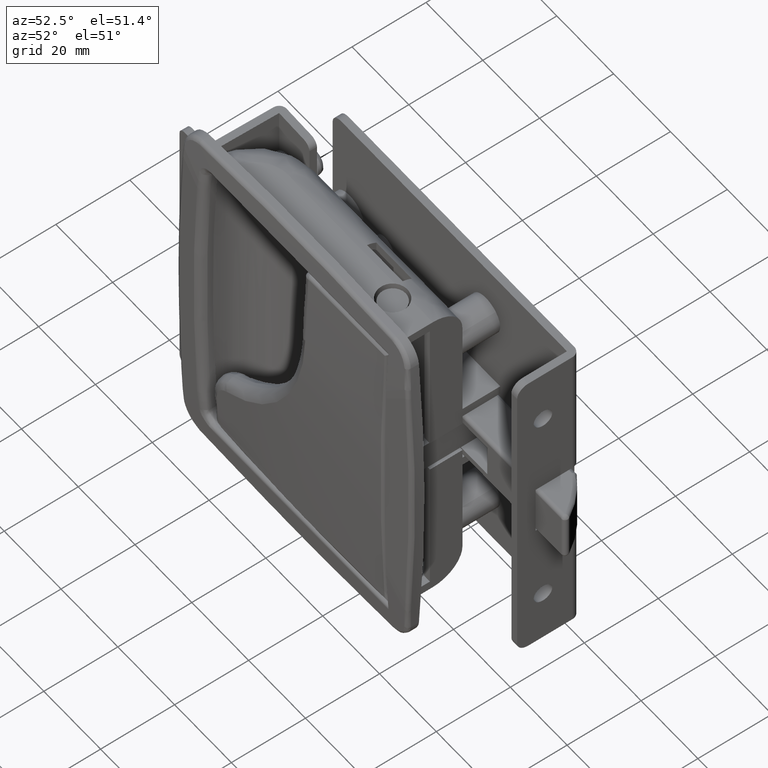
[diagram: clean part render]
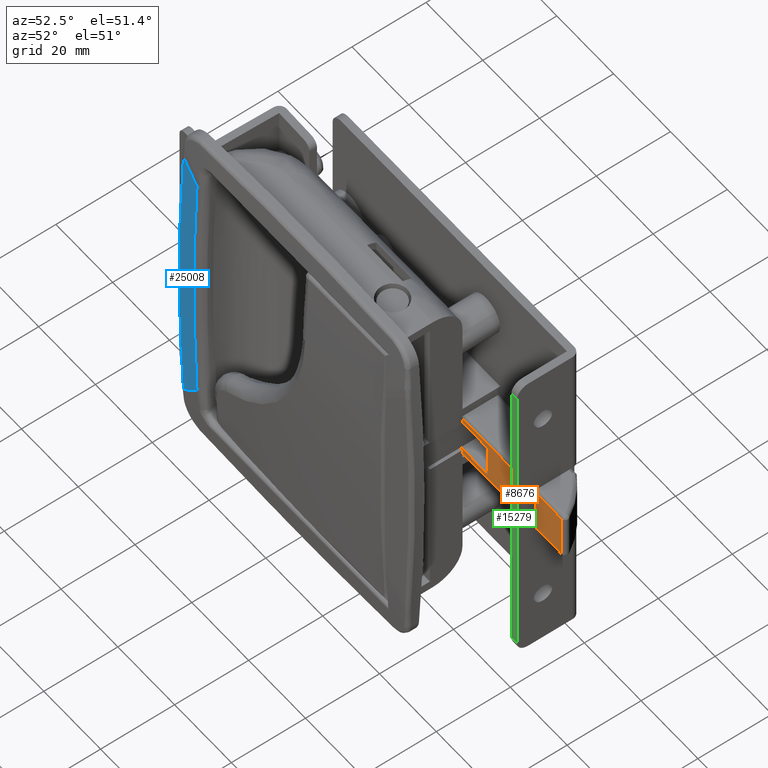
[diagram: same view with three faces highlighted in distinct colors, each labeled with its STEP entity id]
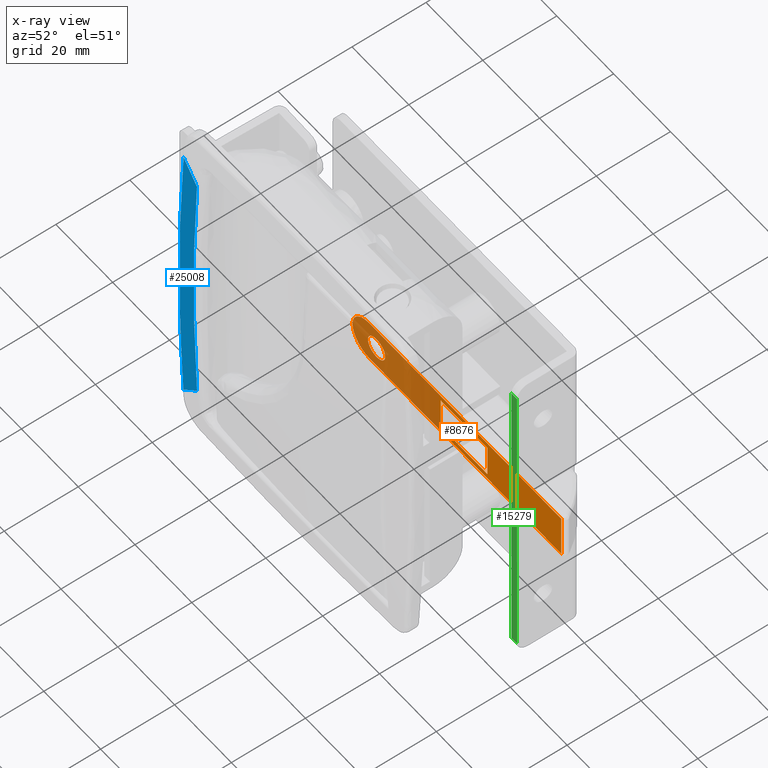
[diagram: x-ray of the same camera — body ghosted, the three highlighted faces saturated]
A machine part, auxiliary view with three faces highlighted in distinct colors.
The next image is the same camera in x-ray (body ghosted, the three faces saturated) — at least one of them is partly hidden behind the body in this view.
Their STEP definitions:

[orange] entity #8676 — the highlighted face is a freeform B-spline surface patch.
#6856=CARTESIAN_POINT('',(4.623754571207982,-12.0,-2.161148221741472));
#6857=VERTEX_POINT('',#6856);
#6863=CARTESIAN_POINT('',(5.529999999998284,-12.0,0.000003224871554));
#6864=VERTEX_POINT('',#6863);
#6865=CARTESIAN_POINT('',(4.623754571207982,-12.0,-2.161148221741472));
#6866=CARTESIAN_POINT('',(4.820492919253807,-12.000000000000030,-1.967968674605098));
#6867=CARTESIAN_POINT('',(5.083205207723787,-11.999999999999989,-1.627485348121857));
#6868=CARTESIAN_POINT('',(5.430734474373715,-12.000000000000011,-0.902117894541082));
#6869=CARTESIAN_POINT('',(5.530367674941199,-12.000000000000020,-0.376035168802280));
#6870=CARTESIAN_POINT('',(5.529999999998284,-12.0,0.000003224871554));
#6871=B_SPLINE_CURVE_WITH_KNOTS('',3,(#6865,#6866,#6867,#6868,#6869,#6870),.UNSPECIFIED.,.F.,.U.,(4,1,1,4),(0.000000019281320,0.827153115090671,1.278326643161861,2.406262716081965),.UNSPECIFIED.);
#6872=EDGE_CURVE('',#6857,#6864,#6871,.T.);
#6874=CARTESIAN_POINT('',(2.500000000000000,-12.0,3.030000000000000));
#6875=VERTEX_POINT('',#6874);
#6876=CARTESIAN_POINT('',(5.529999999998284,-12.0,0.000003224871554));
#6877=CARTESIAN_POINT('',(5.530439898739979,-11.999999999999989,0.396717167452668));
#6878=CARTESIAN_POINT('',(5.421373067864461,-12.000000000000020,0.941737671464662));
#6879=CARTESIAN_POINT('',(5.085961130157188,-11.999999999999980,1.607781192185054));
#6880=CARTESIAN_POINT('',(4.729914475488583,-12.000000000000050,2.087992811131148));
#6881=CARTESIAN_POINT('',(4.238183293577623,-11.999999999999959,2.512114550786030));
#6882=CARTESIAN_POINT('',(3.491285371611112,-12.000000000000069,2.911431826626502));
#6883=CARTESIAN_POINT('',(2.896710123640597,-11.999999999999970,3.030445040743243));
#6884=CARTESIAN_POINT('',(2.500000000000000,-12.0,3.030000000000000));
#6885=B_SPLINE_CURVE_WITH_KNOTS('',3,(#6876,#6877,#6878,#6879,#6880,#6881,#6882,#6883,#6884),.UNSPECIFIED.,.F.,.U.,(4,1,1,1,1,1,4),(0.000000046988511,1.189908741432715,1.636132329845536,2.231077419813045,2.974754482055552,3.569722884703619,4.759630487697089),.UNSPECIFIED.);
#6886=EDGE_CURVE('',#6864,#6875,#6885,.T.);
#6888=CARTESIAN_POINT('',(-0.529999999998284,-12.0,-0.000003224871555));
#6889=VERTEX_POINT('',#6888);
#6890=CARTESIAN_POINT('',(2.500000000000000,-12.0,3.030000000000000));
#6891=CARTESIAN_POINT('',(2.152919210612883,-11.999999999999989,3.030223956923714));
#6892=CARTESIAN_POINT('',(1.607734469648217,-12.000000000000020,2.935248898004647));
#6893=CARTESIAN_POINT('',(0.842111619746792,-12.0,2.573110378459830));
#6894=CARTESIAN_POINT('',(0.260963609175849,-12.0,2.096271705389544));
#6895=CARTESIAN_POINT('',(-0.170395459034766,-11.999999999999980,1.483569562639849));
#6896=CARTESIAN_POINT('',(-0.456374840402413,-12.000000000000069,0.793175693201596));
#6897=CARTESIAN_POINT('',(-0.530123332056241,-11.999999999999940,0.297479981074204));
#6898=CARTESIAN_POINT('',(-0.529999999998284,-12.0,-0.000003224871555));
#6899=B_SPLINE_CURVE_WITH_KNOTS('',3,(#6890,#6891,#6892,#6893,#6894,#6895,#6896,#6897,#6898),.UNSPECIFIED.,.F.,.U.,(4,1,1,1,1,1,4),(0.000000042565825,1.041165330483675,1.636133575108254,2.528552052837329,3.272237213940973,3.867214009714528,4.759634122969630),.UNSPECIFIED.);
#6900=EDGE_CURVE('',#6875,#6889,#6899,.T.);
#6902=CARTESIAN_POINT('',(0.338850625196333,-12.0,-2.123755697984415));
#6903=VERTEX_POINT('',#6902);
#6904=CARTESIAN_POINT('',(-0.529999999998284,-12.0,-0.000003224871555));
#6905=CARTESIAN_POINT('',(-0.530169841614755,-12.0,-0.318708170348503));
#6906=CARTESIAN_POINT('',(-0.447998454620588,-12.000000000000011,-0.833371267817883));
#6907=CARTESIAN_POINT('',(-0.131922168537512,-12.0,-1.555372073376189));
#6908=CARTESIAN_POINT('',(0.149781141918862,-11.999999999999959,-1.931481600876080));
#6909=CARTESIAN_POINT('',(0.338850625196333,-12.0,-2.123755697984415));
#6910=B_SPLINE_CURVE_WITH_KNOTS('',3,(#6904,#6905,#6906,#6907,#6908,#6909),.UNSPECIFIED.,.F.,.U.,(4,1,1,4),(0.000000031330888,0.956065914143584,1.544390560844950,2.353369620794502),.UNSPECIFIED.);
#6911=EDGE_CURVE('',#6889,#6903,#6910,.T.);
#6947=CARTESIAN_POINT('',(2.500000000000000,-12.0,-3.030000000000000));
#6948=VERTEX_POINT('',#6947);
#6949=CARTESIAN_POINT('',(0.338850625196333,-12.0,-2.123755697984415));
#6950=CARTESIAN_POINT('',(0.602178663861249,-12.000000000000011,-2.392182760643003));
#6951=CARTESIAN_POINT('',(1.083825645958548,-11.999999999999980,-2.726749965941036));
#6952=CARTESIAN_POINT('',(1.848347854124745,-12.000000000000041,-2.982177436019826));
#6953=CARTESIAN_POINT('',(2.274416664159724,-11.999999999999980,-3.030041049783849));
#6954=CARTESIAN_POINT('',(2.500000000000000,-12.0,-3.030000000000000));
#6955=B_SPLINE_CURVE_WITH_KNOTS('',3,(#6949,#6950,#6951,#6952,#6953,#6954),.UNSPECIFIED.,.F.,.U.,(4,1,1,4),(0.000000019201700,1.127934882573087,1.729499440312415,2.406260135637761),.UNSPECIFIED.);
#6956=EDGE_CURVE('',#6903,#6948,#6955,.T.);
#6958=CARTESIAN_POINT('',(2.500000000000000,-12.0,-3.030000000000000));
#6959=CARTESIAN_POINT('',(2.769665555219780,-12.000000000000030,-3.030094619618077));
#6960=CARTESIAN_POINT('',(3.186332690610562,-11.999999999999980,-2.973965478180715));
#6961=CARTESIAN_POINT('',(3.927942850615997,-12.000000000000020,-2.711893849262336));
#6962=CARTESIAN_POINT('',(4.361668875011676,-12.0,-2.419144176607579));
#6963=CARTESIAN_POINT('',(4.623754571207982,-12.0,-2.161148221741472));
#6964=B_SPLINE_CURVE_WITH_KNOTS('',3,(#6958,#6959,#6960,#6961,#6962,#6963),.UNSPECIFIED.,.F.,.U.,(4,1,1,4),(0.000000031256848,0.808979986230948,1.250224120926843,2.353372224335934),.UNSPECIFIED.);
#6965=EDGE_CURVE('',#6948,#6857,#6964,.T.);
#7271=CARTESIAN_POINT('',(67.499761556150503,-12.0,-5.999700000000000));
#7272=VERTEX_POINT('',#7271);
#7360=CARTESIAN_POINT('',(-6.428585E-009,-12.0,-5.999699999999921));
#7361=VERTEX_POINT('',#7360);
#7379=CARTESIAN_POINT('',(67.499761556150503,-12.0,-5.999700000000000));
#7380=CARTESIAN_POINT('',(-6.428585E-009,-12.0,-5.999699999999921));
#7381=QUASI_UNIFORM_CURVE('',1,(#7379,#7380),.UNSPECIFIED.,.F.,.U.);
#7382=EDGE_CURVE('',#7272,#7361,#7381,.T.);
#7469=CARTESIAN_POINT('',(-5.999999999846950,-12.0,0.000042857142861));
#7470=VERTEX_POINT('',#7469);
#7496=CARTESIAN_POINT('',(-6.428585E-009,-12.0,-5.999699999999921));
#7497=CARTESIAN_POINT('',(-0.564509914121204,-12.000000000000011,-5.999924107095183));
#7498=CARTESIAN_POINT('',(-1.546142704949832,-11.999999999999980,-5.860177489466667));
#7499=CARTESIAN_POINT('',(-2.757525823366688,-12.000000000000011,-5.367066199656764));
#7500=CARTESIAN_POINT('',(-3.710670744556284,-12.000000000000020,-4.755292508939710));
#7501=CARTESIAN_POINT('',(-4.505710976385576,-11.999999999999870,-4.016807333806183));
#7502=CARTESIAN_POINT('',(-5.262978734400868,-12.000000000000050,-2.982743464666072));
#7503=CARTESIAN_POINT('',(-5.846413148376414,-12.000000000000011,-1.644260343958258));
#7504=CARTESIAN_POINT('',(-6.000193425353953,-11.999999999999980,-0.564471868523715));
#7505=CARTESIAN_POINT('',(-5.999999999846950,-12.0,0.000042857142861));
#7506=B_SPLINE_CURVE_WITH_KNOTS('',3,(#7496,#7497,#7498,#7499,#7500,#7501,#7502,#7503,#7504,#7505),.UNSPECIFIED.,.F.,.U.,(4,1,1,1,1,1,1,4),(0.000000176600139,1.693486855682045,2.945226587236618,3.902443878691226,5.080458248291634,6.184935252149970,7.731207118869846,9.424692162863696),.UNSPECIFIED.);
#7507=EDGE_CURVE('',#7361,#7470,#7506,.T.);
#7595=CARTESIAN_POINT('',(-1.387779E-014,-12.0,6.0));
#7596=VERTEX_POINT('',#7595);
#7623=CARTESIAN_POINT('',(-5.999999999846950,-12.0,0.000042857142861));
#7624=CARTESIAN_POINT('',(-6.000128421271362,-12.0,0.490922683761111));
#7625=CARTESIAN_POINT('',(-5.881866277852176,-12.0,1.448058588715129));
#7626=CARTESIAN_POINT('',(-5.374352946960114,-12.000000000000060,2.788442504329257));
#7627=CARTESIAN_POINT('',(-4.570780043283719,-12.000000000000041,3.975210440237807));
#7628=CARTESIAN_POINT('',(-3.489734278949586,-11.999999999999771,4.955082230765760));
#7629=CARTESIAN_POINT('',(-2.290205926365759,-12.000000000000410,5.596148888085893));
#7630=CARTESIAN_POINT('',(-1.104443069990865,-11.999999999999710,5.932020699637382));
#7631=CARTESIAN_POINT('',(-0.368150402861004,-12.0,6.000034318319948));
#7632=CARTESIAN_POINT('',(-1.387779E-014,-12.0,6.0));
#7633=B_SPLINE_CURVE_WITH_KNOTS('',3,(#7623,#7624,#7625,#7626,#7627,#7628,#7629,#7630,#7631,#7632),.UNSPECIFIED.,.F.,.U.,(4,1,1,1,1,1,1,4),(0.000000139360930,1.472610351495438,2.871625573506949,4.270636156900326,5.743217319929551,7.215873998581959,8.320358521664542,9.424812942047653),.UNSPECIFIED.);
#7634=EDGE_CURVE('',#7470,#7596,#7633,.T.);
#7697=CARTESIAN_POINT('',(67.499761556150503,-12.0,6.0));
#7698=VERTEX_POINT('',#7697);
#7715=CARTESIAN_POINT('',(-1.387779E-014,-12.0,6.0));
#7716=CARTESIAN_POINT('',(67.499761556150503,-12.0,6.0));
#7717=QUASI_UNIFORM_CURVE('',1,(#7715,#7716),.UNSPECIFIED.,.F.,.U.);
#7718=EDGE_CURVE('',#7596,#7698,#7717,.T.);
#8358=CARTESIAN_POINT('',(67.499761556150503,-12.0,6.0));
#8359=CARTESIAN_POINT('',(67.499761556150503,-12.0,-5.999700000000000));
#8360=QUASI_UNIFORM_CURVE('',1,(#8358,#8359),.UNSPECIFIED.,.F.,.U.);
#8361=EDGE_CURVE('',#7698,#7272,#8360,.T.);
#8488=CARTESIAN_POINT('',(25.100000000000001,-12.0,4.499999999999949));
#8489=VERTEX_POINT('',#8488);
#8511=CARTESIAN_POINT('',(41.442275148159297,-12.0,4.499999999999949));
#8512=VERTEX_POINT('',#8511);
#8518=CARTESIAN_POINT('',(41.442275148159297,-12.0,4.499999999999949));
#8519=CARTESIAN_POINT('',(25.100000000000001,-12.0,4.499999999999949));
#8520=QUASI_UNIFORM_CURVE('',1,(#8518,#8519),.UNSPECIFIED.,.F.,.U.);
#8521=EDGE_CURVE('',#8512,#8489,#8520,.T.);
#8540=CARTESIAN_POINT('',(25.100000000000001,-12.0,-4.499999999999949));
#8541=VERTEX_POINT('',#8540);
#8547=CARTESIAN_POINT('',(41.442275148159297,-12.0,-4.499999999999949));
#8548=VERTEX_POINT('',#8547);
#8549=CARTESIAN_POINT('',(41.442275148159297,-12.0,-4.499999999999949));
#8550=CARTESIAN_POINT('',(25.100000000000001,-12.0,-4.499999999999949));
#8551=QUASI_UNIFORM_CURVE('',1,(#8549,#8550),.UNSPECIFIED.,.F.,.U.);
#8552=EDGE_CURVE('',#8548,#8541,#8551,.T.);
#8600=CARTESIAN_POINT('',(25.100000000000001,-12.0,-4.499999999999949));
#8601=CARTESIAN_POINT('',(25.100000000000001,-12.0,4.499999999999949));
#8602=QUASI_UNIFORM_CURVE('',1,(#8600,#8601),.UNSPECIFIED.,.F.,.U.);
#8603=EDGE_CURVE('',#8541,#8489,#8602,.T.);
#8614=CARTESIAN_POINT('',(41.442275148159297,-12.0,4.499999999999949));
#8615=CARTESIAN_POINT('',(41.442275148159297,-12.0,-4.499999999999949));
#8616=QUASI_UNIFORM_CURVE('',1,(#8614,#8615),.UNSPECIFIED.,.F.,.U.);
#8617=EDGE_CURVE('',#8512,#8548,#8616,.T.);
#8650=CARTESIAN_POINT('',(-9.671312947112229,-12.0,6.599384991742254));
#8651=CARTESIAN_POINT('',(-9.671312947112229,-12.0,-6.599085313599287));
#8652=CARTESIAN_POINT('',(71.171076474833015,-12.0,6.599384991742254));
#8653=CARTESIAN_POINT('',(71.171076474833015,-12.0,-6.599085313599287));
#8654=B_SPLINE_SURFACE_WITH_KNOTS('',1,1,((#8650,#8652),(#8651,#8653)),.UNSPECIFIED.,.F.,.F.,.U.,(2,2),(2,2),(0.0,13.198470305341541),(0.0,80.842389421945242),.UNSPECIFIED.);
#8655=ORIENTED_EDGE('',*,*,#8361,.F.);
#8656=ORIENTED_EDGE('',*,*,#7718,.F.);
#8657=ORIENTED_EDGE('',*,*,#7634,.F.);
#8658=ORIENTED_EDGE('',*,*,#7507,.F.);
#8659=ORIENTED_EDGE('',*,*,#7382,.F.);
#8660=EDGE_LOOP('',(#8655,#8656,#8657,#8658,#8659));
#8661=FACE_OUTER_BOUND('',#8660,.T.);
#8662=ORIENTED_EDGE('',*,*,#8552,.T.);
#8663=ORIENTED_EDGE('',*,*,#8603,.T.);
#8664=ORIENTED_EDGE('',*,*,#8521,.F.);
#8665=ORIENTED_EDGE('',*,*,#8617,.T.);
#8666=EDGE_LOOP('',(#8662,#8663,#8664,#8665));
#8667=FACE_BOUND('',#8666,.T.);
#8668=ORIENTED_EDGE('',*,*,#6886,.F.);
#8669=ORIENTED_EDGE('',*,*,#6872,.F.);
#8670=ORIENTED_EDGE('',*,*,#6965,.F.);
#8671=ORIENTED_EDGE('',*,*,#6956,.F.);
#8672=ORIENTED_EDGE('',*,*,#6911,.F.);
#8673=ORIENTED_EDGE('',*,*,#6900,.F.);
#8674=EDGE_LOOP('',(#8668,#8669,#8670,#8671,#8672,#8673));
#8675=FACE_BOUND('',#8674,.T.);
#8676=ADVANCED_FACE('',(#8661,#8667,#8675),#8654,.T.);

[blue] entity #25008 — the highlighted face is a freeform B-spline surface patch.
#19366=CARTESIAN_POINT('',(33.874876980734562,-32.611736803129652,35.018231881355803));
#19367=VERTEX_POINT('',#19366);
#19458=CARTESIAN_POINT('',(33.874765912351599,-32.611742230980703,-35.018124965368649));
#19459=VERTEX_POINT('',#19458);
#19472=CARTESIAN_POINT('',(33.874876980734562,-32.611736803129652,35.018231881355803));
#19473=CARTESIAN_POINT('',(34.284090715167210,-32.591738721478293,29.181868160271669));
#19474=CARTESIAN_POINT('',(34.896970149765657,-32.561157843210012,17.509141044805538));
#19475=CARTESIAN_POINT('',(35.203018654547677,-32.545635908212823,0.000051346525180));
#19476=CARTESIAN_POINT('',(34.896914157217402,-32.561160373405272,-17.509037378544871));
#19477=CARTESIAN_POINT('',(34.283998157478003,-32.591743305590633,-29.181762545342309));
#19478=CARTESIAN_POINT('',(33.874765912351599,-32.611742230980703,-35.018124965368649));
#19479=B_SPLINE_CURVE_WITH_KNOTS('',3,(#19472,#19473,#19474,#19475,#19476,#19477,#19478),.UNSPECIFIED.,.F.,.U.,(4,1,1,1,4),(0.0,0.250000000000000,0.500000000000000,0.750000000000000,1.0),.UNSPECIFIED.);
#19480=EDGE_CURVE('',#19367,#19459,#19479,.T.);
#20352=CARTESIAN_POINT('',(38.982118642024652,-32.344676566727749,39.932874750125208));
#20353=VERTEX_POINT('',#20352);
#20522=CARTESIAN_POINT('',(38.982118642035452,-32.344676566727202,-39.932874750131198));
#20523=VERTEX_POINT('',#20522);
#20549=CARTESIAN_POINT('',(38.982118642035452,-32.344676566727202,-39.932874750131198));
#20550=CARTESIAN_POINT('',(39.508138809104217,-32.315370562761828,-33.277395625120143));
#20551=CARTESIAN_POINT('',(39.901886941436111,-32.292912847784947,-26.621916500088481));
#20552=CARTESIAN_POINT('',(40.426682488658123,-32.262843239525452,-13.310958250045751));
#20553=CARTESIAN_POINT('',(40.688775411859169,-32.247618313572801,-3.013793E-012));
#20554=CARTESIAN_POINT('',(40.426682488658379,-32.262843239525459,13.310958250039700));
#20555=CARTESIAN_POINT('',(39.901886941436501,-32.292912847784962,26.621916500082438));
#20556=CARTESIAN_POINT('',(39.508138809105198,-32.315370562761792,33.277395625103971));
#20557=CARTESIAN_POINT('',(38.982118642024652,-32.344676566727749,39.932874750125208));
#20558=B_SPLINE_CURVE_WITH_KNOTS('',3,(#20549,#20550,#20551,#20552,#20553,#20554,#20555,#20556,#20557),.UNSPECIFIED.,.F.,.U.,(4,2,1,2,4),(0.0,0.250000000000000,0.500000000000000,0.750000000000000,1.0),.UNSPECIFIED.);
#20559=EDGE_CURVE('',#20523,#20353,#20558,.T.);
#21304=CARTESIAN_POINT('',(33.874765912351599,-32.611742230980703,-35.018124965368649));
#21305=CARTESIAN_POINT('',(38.982118642035452,-32.344676566727202,-39.932874750131198));
#21306=QUASI_UNIFORM_CURVE('',1,(#21304,#21305),.UNSPECIFIED.,.F.,.U.);
#21307=EDGE_CURVE('',#19459,#20523,#21306,.T.);
#21339=CARTESIAN_POINT('',(38.982118642024652,-32.344676566727749,39.932874750125208));
#21340=CARTESIAN_POINT('',(33.874876980734562,-32.611736803129652,35.018231881355803));
#21341=QUASI_UNIFORM_CURVE('',1,(#21339,#21340),.UNSPECIFIED.,.F.,.U.);
#21342=EDGE_CURVE('',#20353,#19367,#21341,.T.);
#24988=CARTESIAN_POINT('',(40.891442737215748,-32.235858969775222,-41.929518487637608));
#24989=CARTESIAN_POINT('',(40.891442737215748,-32.235858969775222,41.979432318026468));
#24990=CARTESIAN_POINT('',(37.217115056345534,-32.449972884168801,-41.929518487637615));
#24991=CARTESIAN_POINT('',(37.217115056345534,-32.449972884168801,41.979432318026468));
#24992=CARTESIAN_POINT('',(33.540861493003199,-32.627985279127088,-41.929518487637608));
#24993=CARTESIAN_POINT('',(33.540861493003199,-32.627985279127088,41.979432318026461));
#25001=(BOUNDED_SURFACE()B_SPLINE_SURFACE(1,2,((#24988,#24990,#24992),(#24989,#24991,#24993)),.UNSPECIFIED.,.F.,.F.,.U.)B_SPLINE_SURFACE_WITH_KNOTS((2,2),(3,3),(0.0,83.908950805664062),(1.671520585083961,9.032900935149193),.UNSPECIFIED.)GEOMETRIC_REPRESENTATION_ITEM()RATIONAL_B_SPLINE_SURFACE(((0.999167365095038,0.999118280047550,0.999093296641422),(0.999167365095038,0.999118280047550,0.999093296641422)))REPRESENTATION_ITEM('')SURFACE());
#25002=ORIENTED_EDGE('',*,*,#21342,.T.);
#25003=ORIENTED_EDGE('',*,*,#19480,.T.);
#25004=ORIENTED_EDGE('',*,*,#21307,.T.);
#25005=ORIENTED_EDGE('',*,*,#20559,.T.);
#25006=EDGE_LOOP('',(#25002,#25003,#25004,#25005));
#25007=FACE_OUTER_BOUND('',#25006,.T.);
#25008=ADVANCED_FACE('',(#25007),#25001,.T.);

[green] entity #15279 — the highlighted face is a freeform B-spline surface patch.
#14870=CARTESIAN_POINT('',(58.500000000000000,-17.0,42.0));
#14871=VERTEX_POINT('',#14870);
#14892=CARTESIAN_POINT('',(56.500000000000000,-17.0,42.0));
#14893=VERTEX_POINT('',#14892);
#14906=CARTESIAN_POINT('',(56.500000000000000,-17.0,42.0));
#14907=CARTESIAN_POINT('',(58.500000000000000,-17.0,42.0));
#14908=QUASI_UNIFORM_CURVE('',1,(#14906,#14907),.UNSPECIFIED.,.F.,.U.);
#14909=EDGE_CURVE('',#14893,#14871,#14908,.T.);
#14930=CARTESIAN_POINT('',(58.500000000000000,-17.0,-41.999699999999997));
#14931=VERTEX_POINT('',#14930);
#14944=CARTESIAN_POINT('',(56.500000000000000,-17.0,-41.999699999999997));
#14945=VERTEX_POINT('',#14944);
#14946=CARTESIAN_POINT('',(58.500000000000000,-17.0,-41.999699999999997));
#14947=CARTESIAN_POINT('',(56.500000000000000,-17.0,-41.999699999999997));
#14948=QUASI_UNIFORM_CURVE('',1,(#14946,#14947),.UNSPECIFIED.,.F.,.U.);
#14949=EDGE_CURVE('',#14931,#14945,#14948,.T.);
#15240=CARTESIAN_POINT('',(56.500000000000000,-17.0,-41.999699999999997));
#15241=CARTESIAN_POINT('',(56.500000000000000,-17.0,42.0));
#15242=QUASI_UNIFORM_CURVE('',1,(#15240,#15241),.UNSPECIFIED.,.F.,.U.);
#15243=EDGE_CURVE('',#14945,#14893,#15242,.T.);
#15264=CARTESIAN_POINT('',(56.400100003876382,-17.0,46.195784552086359));
#15265=CARTESIAN_POINT('',(56.400100003876382,-17.0,-46.195480797007150));
#15266=CARTESIAN_POINT('',(58.599900049767797,-17.0,46.195784552086373));
#15267=CARTESIAN_POINT('',(58.599900049767797,-17.0,-46.195480797007150));
#15268=B_SPLINE_SURFACE_WITH_KNOTS('',1,1,((#15264,#15266),(#15265,#15267)),.UNSPECIFIED.,.F.,.F.,.U.,(2,2),(2,2),(0.0,92.391265349093516),(0.0,2.199800045891415),.UNSPECIFIED.);
#15269=CARTESIAN_POINT('',(58.500000000000000,-17.0,-41.999699999999997));
#15270=CARTESIAN_POINT('',(58.500000000000000,-17.0,42.0));
#15271=QUASI_UNIFORM_CURVE('',1,(#15269,#15270),.UNSPECIFIED.,.F.,.U.);
#15272=EDGE_CURVE('',#14931,#14871,#15271,.T.);
#15273=ORIENTED_EDGE('',*,*,#15272,.T.);
#15274=ORIENTED_EDGE('',*,*,#14909,.F.);
#15275=ORIENTED_EDGE('',*,*,#15243,.F.);
#15276=ORIENTED_EDGE('',*,*,#14949,.F.);
#15277=EDGE_LOOP('',(#15273,#15274,#15275,#15276));
#15278=FACE_OUTER_BOUND('',#15277,.T.);
#15279=ADVANCED_FACE('',(#15278),#15268,.T.);